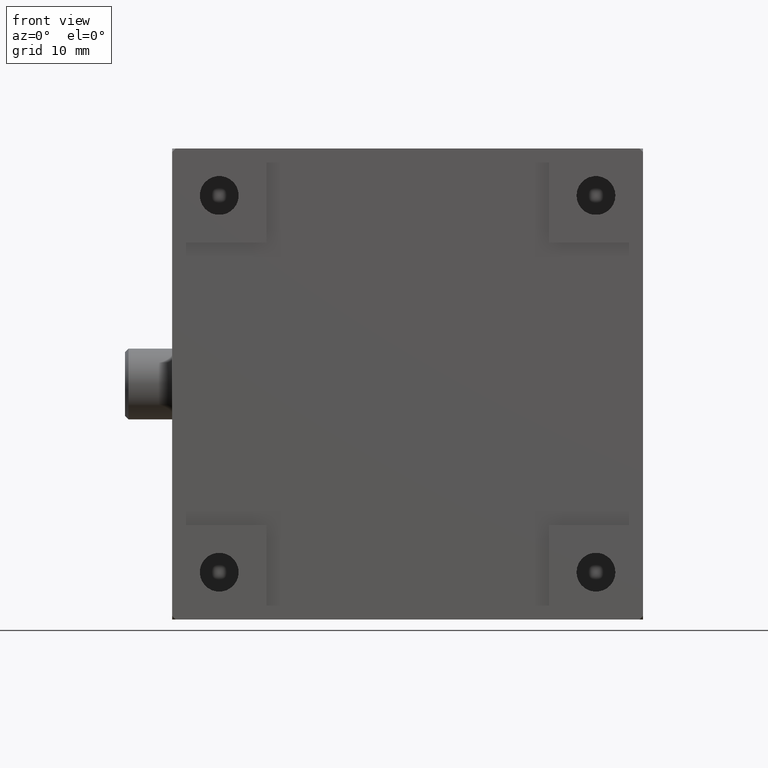
[diagram: clean part render]
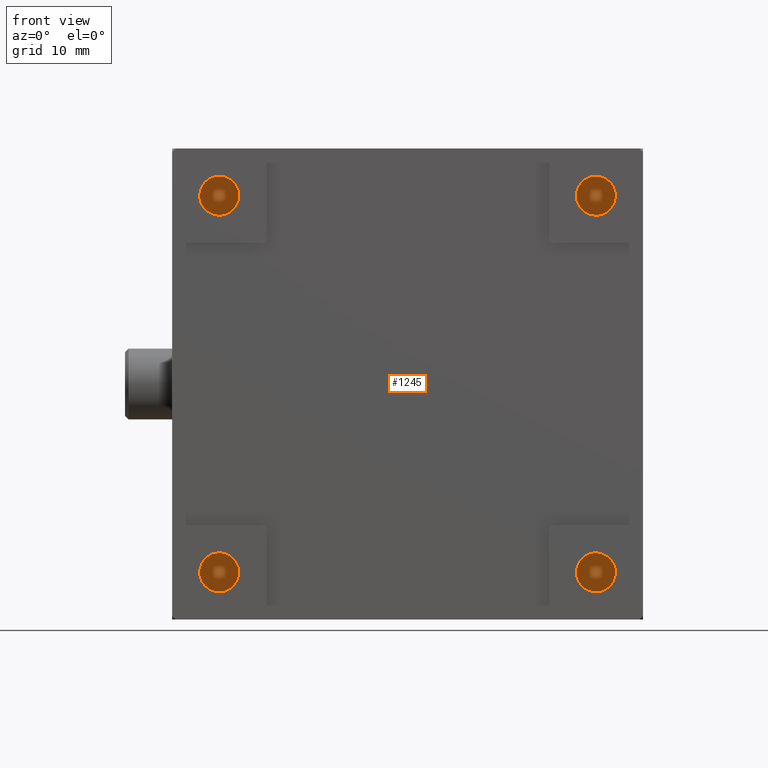
[diagram: same view with one face highlighted and labeled with its STEP entity id]
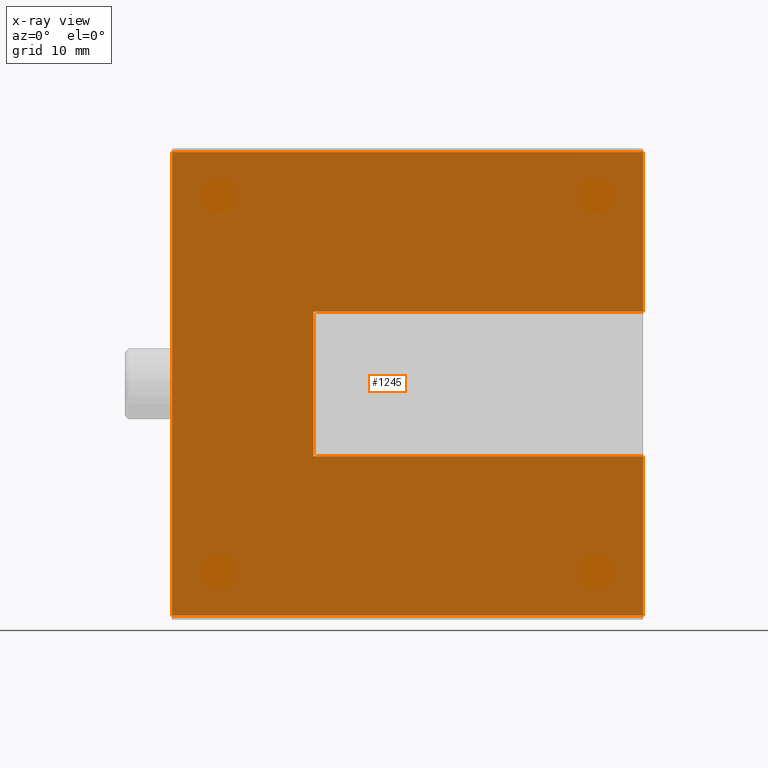
[diagram: x-ray of the same camera — body ghosted, the highlighted face saturated]
A machine part, front view. The second image highlights one B-rep face of the part: STEP entity #1245.
The next image is the same camera in x-ray: the body ghosted, the highlighted face saturated — about 97% of this face is hidden behind the body in this view.
In plain terms, the highlighted planar face has unit normal (0, -1, 0).
Its self-contained STEP definition (entity closure, byte-faithful):
#56 = VECTOR ( 'NONE', #4344, 1000.000000000000000 ) ;
#86 = ORIENTED_EDGE ( 'NONE', *, *, #1883, .F. ) ;
#177 = ORIENTED_EDGE ( 'NONE', *, *, #3623, .T. ) ;
#334 = DIRECTION ( 'NONE',  ( 0.000000000000000000, 0.000000000000000000, 1.000000000000000000 ) ) ;
#649 = VERTEX_POINT ( 'NONE', #2563 ) ;
#655 = VECTOR ( 'NONE', #2071, 1000.000000000000000 ) ;
#726 = CARTESIAN_POINT ( 'NONE',  ( 40.00000000000000000, 12.00000000000003197, 0.3000000000000137002 ) ) ;
#746 = ORIENTED_EDGE ( 'NONE', *, *, #4372, .T. ) ;
#836 = EDGE_CURVE ( 'NONE', #3511, #1485, #4328, .T. ) ;
#900 = DIRECTION ( 'NONE',  ( 0.000000000000000000, 0.000000000000000000, 1.000000000000000000 ) ) ;
#945 = CARTESIAN_POINT ( 'NONE',  ( 40.00000000000000000, 12.00000000000003375, 13.85000000000000142 ) ) ;
#1059 = DIRECTION ( 'NONE',  ( -1.000000000000000000, -0.000000000000000000, -0.000000000000000000 ) ) ;
#1093 = ORIENTED_EDGE ( 'NONE', *, *, #2638, .T. ) ;
#1173 = DIRECTION ( 'NONE',  ( 0.000000000000000000, 0.000000000000000000, 1.000000000000000000 ) ) ;
#1245 = ADVANCED_FACE ( 'NONE', ( #2117 ), #4454, .T. ) ;
#1319 = CARTESIAN_POINT ( 'NONE',  ( 40.00000000000000000, 12.00000000000003197, 39.70000000000000284 ) ) ;
#1365 = VERTEX_POINT ( 'NONE', #4370 ) ;
#1380 = CARTESIAN_POINT ( 'NONE',  ( 0.000000000000000000, 12.00000000000003197, 0.000000000000000000 ) ) ;
#1428 = EDGE_CURVE ( 'NONE', #3638, #3511, #3529, .T. ) ;
#1447 = LINE ( 'NONE', #2219, #3943 ) ;
#1485 = VERTEX_POINT ( 'NONE', #945 ) ;
#1500 = LINE ( 'NONE', #1576, #4937 ) ;
#1576 = CARTESIAN_POINT ( 'NONE',  ( 40.00000000000000000, 12.00000000000003197, 26.14999999999999858 ) ) ;
#1883 = EDGE_CURVE ( 'NONE', #3638, #649, #2148, .T. ) ;
#1940 = VECTOR ( 'NONE', #334, 1000.000000000000000 ) ;
#1962 = CARTESIAN_POINT ( 'NONE',  ( 40.00000000000000000, 12.00000000000003197, 0.000000000000000000 ) ) ;
#1965 = EDGE_LOOP ( 'NONE', ( #3046, #4172, #746, #1093, #4186, #5079, #177, #86 ) ) ;
#2071 = DIRECTION ( 'NONE',  ( 0.000000000000000000, 0.000000000000000000, 1.000000000000000000 ) ) ;
#2117 = FACE_OUTER_BOUND ( 'NONE', #1965, .T. ) ;
#2148 = LINE ( 'NONE', #1380, #2792 ) ;
#2219 = CARTESIAN_POINT ( 'NONE',  ( 40.00000000000000000, 12.00000000000003197, 13.84999999999999964 ) ) ;
#2246 = DIRECTION ( 'NONE',  ( 0.000000000000000000, -1.000000000000000000, 0.000000000000000000 ) ) ;
#2387 = CARTESIAN_POINT ( 'NONE',  ( 40.00000000000000000, 12.00000000000003197, 0.000000000000000000 ) ) ;
#2429 = CARTESIAN_POINT ( 'NONE',  ( 12.00000000000000000, 12.00000000000003197, 0.3000000000000139777 ) ) ;
#2563 = CARTESIAN_POINT ( 'NONE',  ( 0.000000000000000000, 12.00000000000003197, 39.70000000000000284 ) ) ;
#2638 = EDGE_CURVE ( 'NONE', #4784, #3663, #4700, .T. ) ;
#2727 = CARTESIAN_POINT ( 'NONE',  ( 40.00000000000000000, 12.00000000000003197, 0.3000000000000139777 ) ) ;
#2792 = VECTOR ( 'NONE', #900, 1000.000000000000000 ) ;
#2940 = VERTEX_POINT ( 'NONE', #4014 ) ;
#3046 = ORIENTED_EDGE ( 'NONE', *, *, #1428, .T. ) ;
#3057 = DIRECTION ( 'NONE',  ( 1.000000000000000000, 0.000000000000000000, 0.000000000000000000 ) ) ;
#3271 = VECTOR ( 'NONE', #1173, 1000.000000000000000 ) ;
#3401 = VECTOR ( 'NONE', #4838, 1000.000000000000000 ) ;
#3450 = CARTESIAN_POINT ( 'NONE',  ( 40.00000000000000000, 12.00000000000003197, 0.3000000000000139777 ) ) ;
#3511 = VERTEX_POINT ( 'NONE', #726 ) ;
#3529 = LINE ( 'NONE', #2727, #56 ) ;
#3623 = EDGE_CURVE ( 'NONE', #1365, #649, #3699, .T. ) ;
#3638 = VERTEX_POINT ( 'NONE', #4017 ) ;
#3663 = VERTEX_POINT ( 'NONE', #3867 ) ;
#3699 = LINE ( 'NONE', #1319, #3401 ) ;
#3867 = CARTESIAN_POINT ( 'NONE',  ( 12.00000000000000000, 12.00000000000003197, 26.14999999999999503 ) ) ;
#3874 = DIRECTION ( 'NONE',  ( 1.000000000000000000, 0.000000000000000000, 0.000000000000000000 ) ) ;
#3943 = VECTOR ( 'NONE', #1059, 1000.000000000000000 ) ;
#4014 = CARTESIAN_POINT ( 'NONE',  ( 40.00000000000000711, 12.00000000000003020, 26.14999999999999147 ) ) ;
#4017 = CARTESIAN_POINT ( 'NONE',  ( 0.000000000000000000, 12.00000000000003197, 0.3000000000000137002 ) ) ;
#4172 = ORIENTED_EDGE ( 'NONE', *, *, #836, .T. ) ;
#4186 = ORIENTED_EDGE ( 'NONE', *, *, #4631, .T. ) ;
#4281 = LINE ( 'NONE', #1962, #3271 ) ;
#4328 = LINE ( 'NONE', #2387, #655 ) ;
#4344 = DIRECTION ( 'NONE',  ( 1.000000000000000000, 0.000000000000000000, 0.000000000000000000 ) ) ;
#4370 = CARTESIAN_POINT ( 'NONE',  ( 40.00000000000000000, 12.00000000000003197, 39.70000000000000284 ) ) ;
#4372 = EDGE_CURVE ( 'NONE', #1485, #4784, #1447, .T. ) ;
#4454 = PLANE ( 'NONE',  #5024 ) ;
#4524 = CARTESIAN_POINT ( 'NONE',  ( 12.00000000000000000, 12.00000000000003197, 13.84999999999999964 ) ) ;
#4631 = EDGE_CURVE ( 'NONE', #3663, #2940, #1500, .T. ) ;
#4700 = LINE ( 'NONE', #2429, #1940 ) ;
#4784 = VERTEX_POINT ( 'NONE', #4524 ) ;
#4838 = DIRECTION ( 'NONE',  ( -1.000000000000000000, -0.000000000000000000, -0.000000000000000000 ) ) ;
#4885 = EDGE_CURVE ( 'NONE', #2940, #1365, #4281, .T. ) ;
#4937 = VECTOR ( 'NONE', #3874, 1000.000000000000000 ) ;
#5024 = AXIS2_PLACEMENT_3D ( 'NONE', #3450, #2246, #3057 ) ;
#5079 = ORIENTED_EDGE ( 'NONE', *, *, #4885, .T. ) ;